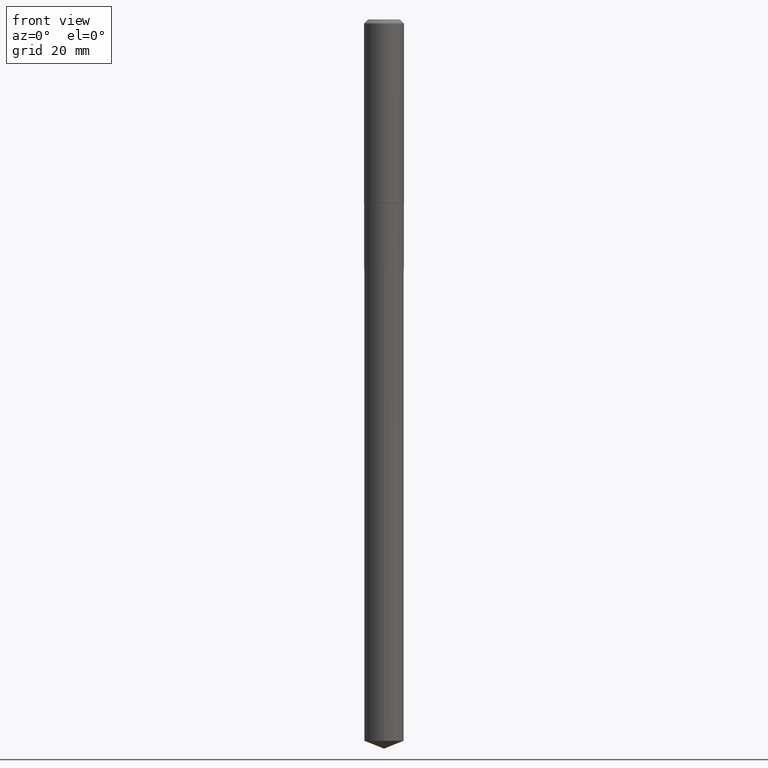
[diagram: clean part render]
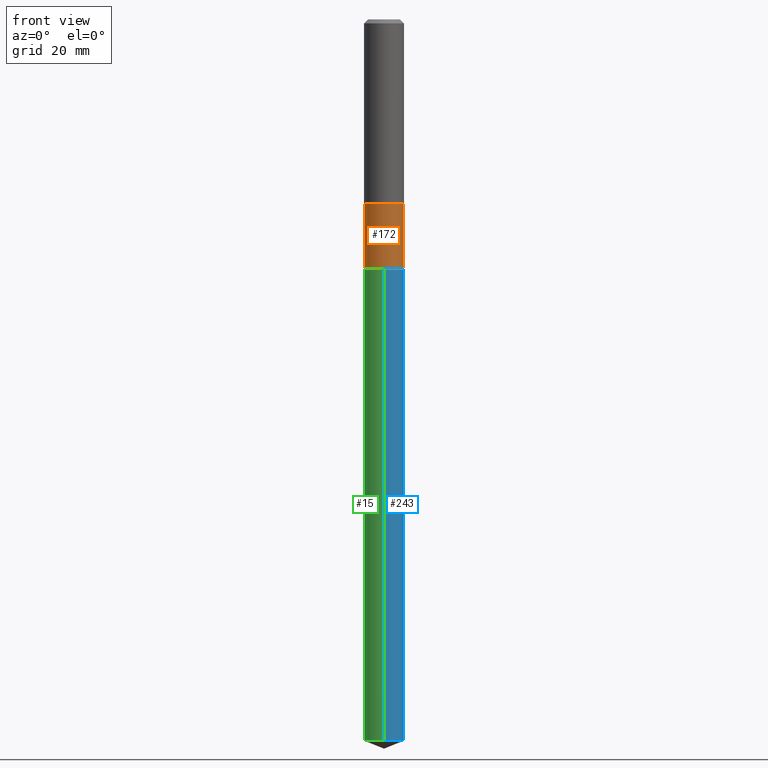
[diagram: same view with three faces highlighted in distinct colors, each labeled with its STEP entity id]
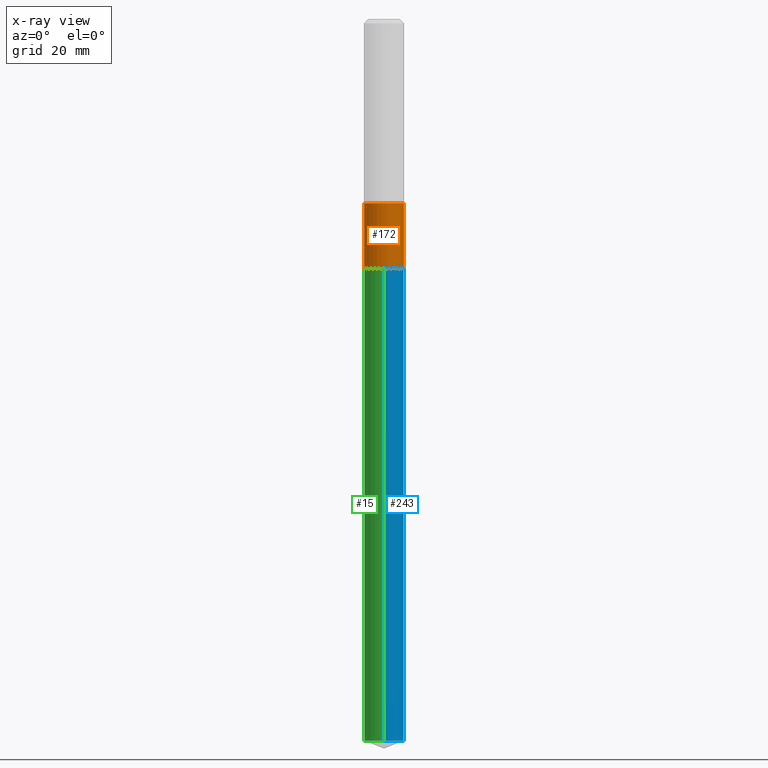
[diagram: x-ray of the same camera — body ghosted, the three highlighted faces saturated]
A machine part, front view with three faces highlighted in distinct colors.
The next image is the same camera in x-ray (body ghosted, the three faces saturated) — at least one of them is partly hidden behind the body in this view.
Their STEP definitions:

[orange] entity #172 — the highlighted cylindrical surface (edge-blend (fillet) strip) has radius 3.9687 mm, axis along (-0, 0, 1).
#40 = CARTESIAN_POINT ( 'NONE',  ( -0.1562499999999999445, -4.848688176378441188E-15, -1.449100000000000055 ) ) ;
#50 = DIRECTION ( 'NONE',  ( -2.445468806185136597E-29, 3.491481338843145583E-15, 1.000000000000000000 ) ) ;
#95 = VERTEX_POINT ( 'NONE', #115 ) ;
#106 = CIRCLE ( 'NONE', #375, 0.1562500000000000000 ) ;
#115 = CARTESIAN_POINT ( 'NONE',  ( -0.1562500000000000000, -4.848688176378441188E-15, -1.964300000000000379 ) ) ;
#118 = CARTESIAN_POINT ( 'NONE',  ( 0.000000000000000000, 0.000000000000000000, 0.000000000000000000 ) ) ;
#132 = EDGE_CURVE ( 'NONE', #95, #239, #264, .T. ) ;
#151 = CARTESIAN_POINT ( 'NONE',  ( 4.803634375989465217E-29, -6.858316793889591866E-15, -1.964300000000000379 ) ) ;
#159 = EDGE_CURVE ( 'NONE', #167, #238, #369, .T. ) ;
#167 = VERTEX_POINT ( 'NONE', #195 ) ;
#172 = ADVANCED_FACE ( 'NONE', ( #373 ), #294, .T. ) ;
#195 = CARTESIAN_POINT ( 'NONE',  ( 0.1562500000000000000, -7.949404712278071040E-15, -1.964300000000000379 ) ) ;
#196 = DIRECTION ( 'NONE',  ( -2.445468806185136597E-29, 3.491481338843145583E-15, 1.000000000000000000 ) ) ;
#202 = EDGE_LOOP ( 'NONE', ( #320, #273, #363, #384 ) ) ;
#227 = CARTESIAN_POINT ( 'NONE',  ( 0.1562499999999999722, -1.091087918388478976E-15, 7.619026212181148976E-30 ) ) ;
#238 = VERTEX_POINT ( 'NONE', #376 ) ;
#239 = VERTEX_POINT ( 'NONE', #40 ) ;
#251 = VECTOR ( 'NONE', #413, 39.37007874015748143 ) ;
#264 = LINE ( 'NONE', #458, #487 ) ;
#272 = EDGE_CURVE ( 'NONE', #239, #238, #457, .T. ) ;
#273 = ORIENTED_EDGE ( 'NONE', *, *, #349, .T. ) ;
#291 = DIRECTION ( 'NONE',  ( 1.000000000000000000, -6.982962677686269077E-15, 0.000000000000000000 ) ) ;
#294 = CYLINDRICAL_SURFACE ( 'NONE', #339, 0.1562499999999999722 ) ;
#299 = DIRECTION ( 'NONE',  ( -2.445468806185136877E-29, 3.491481338843145188E-15, 1.000000000000000000 ) ) ;
#314 = AXIS2_PLACEMENT_3D ( 'NONE', #386, #50, #348 ) ;
#320 = ORIENTED_EDGE ( 'NONE', *, *, #132, .F. ) ;
#339 = AXIS2_PLACEMENT_3D ( 'NONE', #118, #196, #483 ) ;
#348 = DIRECTION ( 'NONE',  ( 1.000000000000000000, -6.982962677686265133E-15, 0.000000000000000000 ) ) ;
#349 = EDGE_CURVE ( 'NONE', #95, #167, #106, .T. ) ;
#363 = ORIENTED_EDGE ( 'NONE', *, *, #159, .T. ) ;
#369 = LINE ( 'NONE', #227, #251 ) ;
#373 = FACE_OUTER_BOUND ( 'NONE', #202, .T. ) ;
#375 = AXIS2_PLACEMENT_3D ( 'NONE', #151, #408, #291 ) ;
#376 = CARTESIAN_POINT ( 'NONE',  ( 0.1562499999999999445, -6.150593526506081976E-15, -1.449100000000000055 ) ) ;
#384 = ORIENTED_EDGE ( 'NONE', *, *, #272, .F. ) ;
#386 = CARTESIAN_POINT ( 'NONE',  ( 3.543728847042881471E-29, -5.059505608117602803E-15, -1.449100000000000055 ) ) ;
#408 = DIRECTION ( 'NONE',  ( -2.445468806185136597E-29, 3.491481338843145583E-15, 1.000000000000000000 ) ) ;
#413 = DIRECTION ( 'NONE',  ( -2.445468806185136877E-29, 3.491481338843145188E-15, 1.000000000000000000 ) ) ;
#457 = CIRCLE ( 'NONE', #314, 0.1562499999999999445 ) ;
#458 = CARTESIAN_POINT ( 'NONE',  ( -0.1562499999999999722, 1.110223024625156343E-15, -7.685836078523288357E-30 ) ) ;
#483 = DIRECTION ( 'NONE',  ( 1.000000000000000000, -6.982962677686266711E-15, 4.876176775795936353E-29 ) ) ;
#487 = VECTOR ( 'NONE', #299, 39.37007874015748143 ) ;

[blue] entity #243 — the highlighted cylindrical surface (edge-blend (fillet) strip) has radius 3.9688 mm, axis along (-0, 0, 1).
#16 = DIRECTION ( 'NONE',  ( -6.982962677686265133E-15, -1.000000000000000000, 0.000000000000000000 ) ) ;
#29 = VERTEX_POINT ( 'NONE', #71 ) ;
#30 = DIRECTION ( 'NONE',  ( -2.445564811276899621E-29, 3.491343854087470303E-15, 1.000000000000000000 ) ) ;
#31 = AXIS2_PLACEMENT_3D ( 'NONE', #293, #327, #33 ) ;
#33 = DIRECTION ( 'NONE',  ( -6.982962677686265133E-15, -1.000000000000000000, 3.496765431890256920E-15 ) ) ;
#42 = VERTEX_POINT ( 'NONE', #406 ) ;
#44 = EDGE_CURVE ( 'NONE', #101, #29, #105, .T. ) ;
#52 = CARTESIAN_POINT ( 'NONE',  ( 1.110223024625204464E-15, 0.1562499999999931444, -1.964800000000000768 ) ) ;
#68 = ORIENTED_EDGE ( 'NONE', *, *, #354, .F. ) ;
#71 = CARTESIAN_POINT ( 'NONE',  ( 1.110223024625295774E-15, 0.1562499999999931444, -1.964800000000000768 ) ) ;
#72 = FACE_OUTER_BOUND ( 'NONE', #92, .T. ) ;
#80 = EDGE_CURVE ( 'NONE', #42, #29, #366, .T. ) ;
#83 = CIRCLE ( 'NONE', #340, 0.1562500000000000000 ) ;
#92 = EDGE_LOOP ( 'NONE', ( #469, #310, #171, #68 ) ) ;
#93 = VECTOR ( 'NONE', #152, 39.37007874015748143 ) ;
#101 = VERTEX_POINT ( 'NONE', #296 ) ;
#105 = CIRCLE ( 'NONE', #31, 0.1562500000000000000 ) ;
#111 = CARTESIAN_POINT ( 'NONE',  ( -1.091087918388431053E-15, -0.1562500000000068834, -1.964799999999999658 ) ) ;
#152 = DIRECTION ( 'NONE',  ( -2.445564811276899621E-29, 3.491343854087470303E-15, 1.000000000000000000 ) ) ;
#166 = VECTOR ( 'NONE', #259, 39.37007874015748143 ) ;
#168 = DIRECTION ( 'NONE',  ( -2.445564811276899621E-29, 3.491343854087470303E-15, 1.000000000000000000 ) ) ;
#171 = ORIENTED_EDGE ( 'NONE', *, *, #44, .F. ) ;
#175 = CARTESIAN_POINT ( 'NONE',  ( -1.091087918388340334E-15, -0.1562500000000198452, -5.686451488185165104 ) ) ;
#223 = CARTESIAN_POINT ( 'NONE',  ( 4.804857110392556897E-29, -6.860062534559013370E-15, -1.964800000000000324 ) ) ;
#237 = DIRECTION ( 'NONE',  ( -6.982962677686265133E-15, -1.000000000000000000, 3.496765431890256920E-15 ) ) ;
#243 = ADVANCED_FACE ( 'NONE', ( #72 ), #485, .T. ) ;
#259 = DIRECTION ( 'NONE',  ( -2.445564811276899621E-29, 3.491343854087470303E-15, 1.000000000000000000 ) ) ;
#276 = VERTEX_POINT ( 'NONE', #175 ) ;
#293 = CARTESIAN_POINT ( 'NONE',  ( 4.804857110392556897E-29, -6.860062534559013370E-15, -1.964800000000000324 ) ) ;
#296 = CARTESIAN_POINT ( 'NONE',  ( -1.091087918388431053E-15, -0.1562500000000068834, -1.964799999999999658 ) ) ;
#310 = ORIENTED_EDGE ( 'NONE', *, *, #80, .T. ) ;
#327 = DIRECTION ( 'NONE',  ( -2.445564811276899621E-29, 3.491343854087470303E-15, 1.000000000000000000 ) ) ;
#340 = AXIS2_PLACEMENT_3D ( 'NONE', #398, #30, #16 ) ;
#346 = AXIS2_PLACEMENT_3D ( 'NONE', #223, #168, #237 ) ;
#354 = EDGE_CURVE ( 'NONE', #276, #101, #447, .T. ) ;
#366 = LINE ( 'NONE', #52, #93 ) ;
#398 = CARTESIAN_POINT ( 'NONE',  ( 1.390639702973450358E-28, -1.985362758488977835E-14, -5.686451488185165104 ) ) ;
#406 = CARTESIAN_POINT ( 'NONE',  ( 1.110223024625295577E-15, 0.1562499999999802103, -5.686451488185165104 ) ) ;
#447 = LINE ( 'NONE', #111, #166 ) ;
#459 = EDGE_CURVE ( 'NONE', #276, #42, #83, .T. ) ;
#469 = ORIENTED_EDGE ( 'NONE', *, *, #459, .T. ) ;
#485 = CYLINDRICAL_SURFACE ( 'NONE', #346, 0.1562500000000000000 ) ;

[green] entity #15 — the highlighted cylindrical surface (edge-blend (fillet) strip) has radius 3.9688 mm, axis along (-0, 0, 1).
#1 = ORIENTED_EDGE ( 'NONE', *, *, #354, .T. ) ;
#13 = ORIENTED_EDGE ( 'NONE', *, *, #80, .F. ) ;
#15 = ADVANCED_FACE ( 'NONE', ( #65 ), #56, .T. ) ;
#29 = VERTEX_POINT ( 'NONE', #71 ) ;
#41 = DIRECTION ( 'NONE',  ( -6.982962677686265133E-15, -1.000000000000000000, 3.496765431890256920E-15 ) ) ;
#42 = VERTEX_POINT ( 'NONE', #406 ) ;
#52 = CARTESIAN_POINT ( 'NONE',  ( 1.110223024625204464E-15, 0.1562499999999931444, -1.964800000000000768 ) ) ;
#56 = CYLINDRICAL_SURFACE ( 'NONE', #288, 0.1562500000000000000 ) ;
#65 = FACE_OUTER_BOUND ( 'NONE', #218, .T. ) ;
#71 = CARTESIAN_POINT ( 'NONE',  ( 1.110223024625295774E-15, 0.1562499999999931444, -1.964800000000000768 ) ) ;
#80 = EDGE_CURVE ( 'NONE', #42, #29, #366, .T. ) ;
#86 = EDGE_CURVE ( 'NONE', #42, #276, #367, .T. ) ;
#93 = VECTOR ( 'NONE', #152, 39.37007874015748143 ) ;
#97 = ORIENTED_EDGE ( 'NONE', *, *, #86, .T. ) ;
#101 = VERTEX_POINT ( 'NONE', #296 ) ;
#103 = DIRECTION ( 'NONE',  ( -2.445564811276899621E-29, 3.491343854087470303E-15, 1.000000000000000000 ) ) ;
#111 = CARTESIAN_POINT ( 'NONE',  ( -1.091087918388431053E-15, -0.1562500000000068834, -1.964799999999999658 ) ) ;
#119 = EDGE_CURVE ( 'NONE', #29, #101, #464, .T. ) ;
#122 = DIRECTION ( 'NONE',  ( -6.982962677686265133E-15, -1.000000000000000000, 0.000000000000000000 ) ) ;
#146 = AXIS2_PLACEMENT_3D ( 'NONE', #157, #335, #41 ) ;
#152 = DIRECTION ( 'NONE',  ( -2.445564811276899621E-29, 3.491343854087470303E-15, 1.000000000000000000 ) ) ;
#157 = CARTESIAN_POINT ( 'NONE',  ( 4.804857110392556897E-29, -6.860062534559013370E-15, -1.964800000000000324 ) ) ;
#166 = VECTOR ( 'NONE', #259, 39.37007874015748143 ) ;
#175 = CARTESIAN_POINT ( 'NONE',  ( -1.091087918388340334E-15, -0.1562500000000198452, -5.686451488185165104 ) ) ;
#183 = ORIENTED_EDGE ( 'NONE', *, *, #119, .F. ) ;
#218 = EDGE_LOOP ( 'NONE', ( #13, #97, #1, #183 ) ) ;
#259 = DIRECTION ( 'NONE',  ( -2.445564811276899621E-29, 3.491343854087470303E-15, 1.000000000000000000 ) ) ;
#276 = VERTEX_POINT ( 'NONE', #175 ) ;
#288 = AXIS2_PLACEMENT_3D ( 'NONE', #352, #395, #360 ) ;
#296 = CARTESIAN_POINT ( 'NONE',  ( -1.091087918388431053E-15, -0.1562500000000068834, -1.964799999999999658 ) ) ;
#335 = DIRECTION ( 'NONE',  ( -2.445564811276899621E-29, 3.491343854087470303E-15, 1.000000000000000000 ) ) ;
#338 = AXIS2_PLACEMENT_3D ( 'NONE', #359, #103, #122 ) ;
#352 = CARTESIAN_POINT ( 'NONE',  ( 4.804857110392556897E-29, -6.860062534559013370E-15, -1.964800000000000324 ) ) ;
#354 = EDGE_CURVE ( 'NONE', #276, #101, #447, .T. ) ;
#359 = CARTESIAN_POINT ( 'NONE',  ( 1.390639702973450358E-28, -1.985362758488977835E-14, -5.686451488185165104 ) ) ;
#360 = DIRECTION ( 'NONE',  ( -6.982962677686265133E-15, -1.000000000000000000, 3.496765431890256920E-15 ) ) ;
#366 = LINE ( 'NONE', #52, #93 ) ;
#367 = CIRCLE ( 'NONE', #338, 0.1562500000000000000 ) ;
#395 = DIRECTION ( 'NONE',  ( -2.445564811276899621E-29, 3.491343854087470303E-15, 1.000000000000000000 ) ) ;
#406 = CARTESIAN_POINT ( 'NONE',  ( 1.110223024625295577E-15, 0.1562499999999802103, -5.686451488185165104 ) ) ;
#447 = LINE ( 'NONE', #111, #166 ) ;
#464 = CIRCLE ( 'NONE', #146, 0.1562500000000000000 ) ;